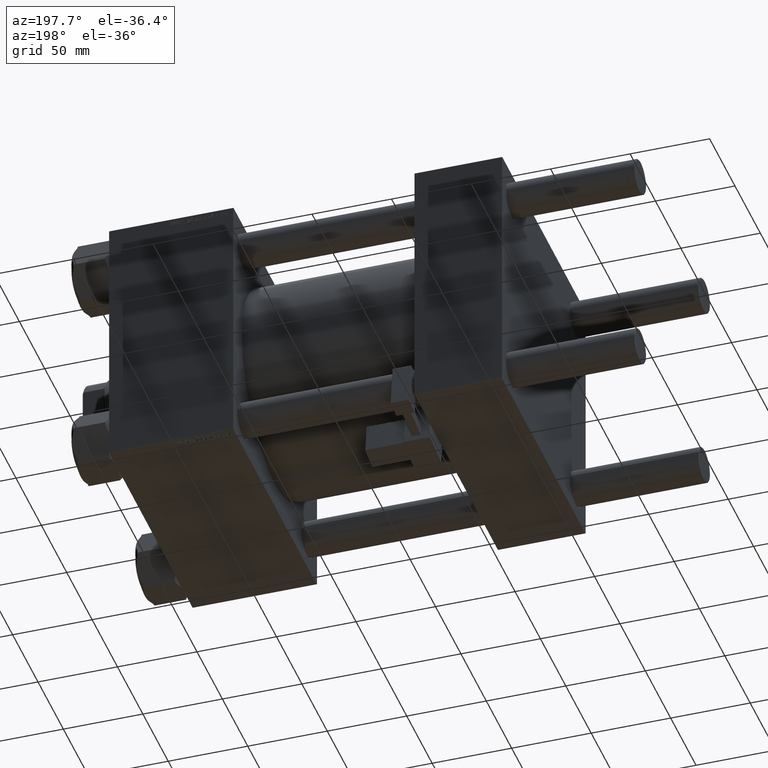
[diagram: clean part render]
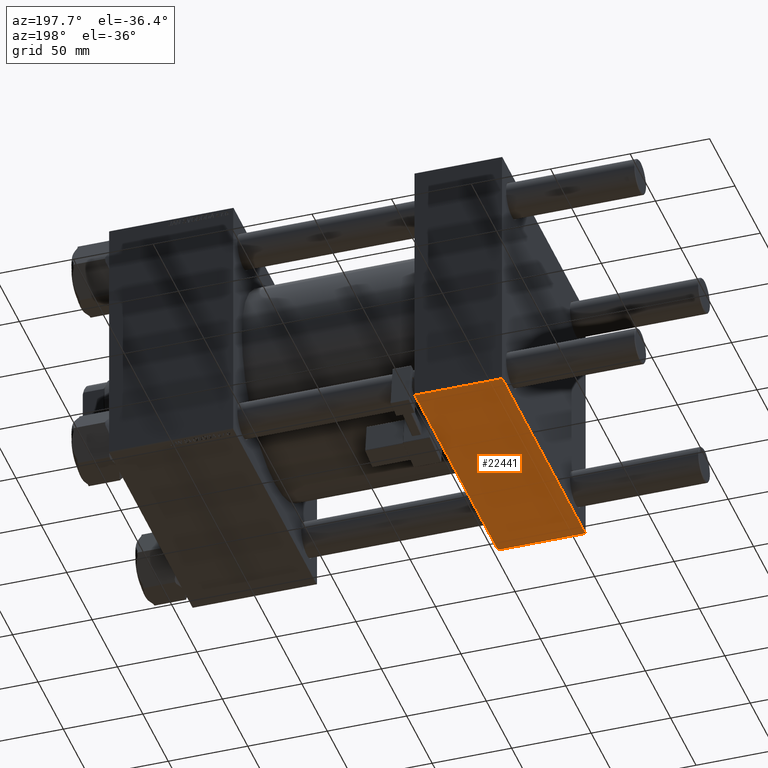
[diagram: same view with one face highlighted and labeled with its STEP entity id]
A machine part, auxiliary view. The second image highlights one B-rep face of the part: STEP entity #22441.
In plain terms, the highlighted planar face has unit normal (0, 0, -1).
Its self-contained STEP definition (entity closure, byte-faithful):
#856 = ORIENTED_EDGE ( 'NONE', *, *, #17948, .T. ) ;
#3818 = VERTEX_POINT ( 'NONE', #6782 ) ;
#4413 = AXIS2_PLACEMENT_3D ( 'NONE', #48157, #40448, #12480 ) ;
#5055 = VERTEX_POINT ( 'NONE', #27131 ) ;
#5195 = EDGE_CURVE ( 'NONE', #5055, #3818, #18218, .T. ) ;
#6782 = CARTESIAN_POINT ( 'NONE',  ( 0.000000000000000000, -82.00000000000000000, -82.50000000000000000 ) ) ;
#8258 = CARTESIAN_POINT ( 'NONE',  ( 0.000000000000000000, 82.00000000000005684, -82.49999999999997158 ) ) ;
#9076 = ORIENTED_EDGE ( 'NONE', *, *, #35486, .T. ) ;
#9496 = DIRECTION ( 'NONE',  ( 0.000000000000000000, -1.000000000000000000, -1.682156097916903588E-16 ) ) ;
#9705 = CARTESIAN_POINT ( 'NONE',  ( 0.000000000000000000, -82.00000000000000000, -82.50000000000000000 ) ) ;
#12480 = DIRECTION ( 'NONE',  ( 0.000000000000000000, 1.000000000000000000, 1.682156097916903588E-16 ) ) ;
#16237 = PLANE ( 'NONE',  #4413 ) ;
#17793 = EDGE_LOOP ( 'NONE', ( #30889, #856, #9076, #39405 ) ) ;
#17948 = EDGE_CURVE ( 'NONE', #41956, #26096, #38075, .T. ) ;
#18218 = LINE ( 'NONE', #9705, #23469 ) ;
#18616 = DIRECTION ( 'NONE',  ( 1.000000000000000000, 0.000000000000000000, 0.000000000000000000 ) ) ;
#22441 = ADVANCED_FACE ( 'NONE', ( #44435 ), #16237, .T. ) ;
#23469 = VECTOR ( 'NONE', #30450, 1000.000000000000000 ) ;
#25227 = VECTOR ( 'NONE', #9496, 1000.000000000000000 ) ;
#26096 = VERTEX_POINT ( 'NONE', #41731 ) ;
#27131 = CARTESIAN_POINT ( 'NONE',  ( 55.00000000000000000, -82.00000000000000000, -82.50000000000000000 ) ) ;
#30450 = DIRECTION ( 'NONE',  ( -1.000000000000000000, 0.000000000000000000, 0.000000000000000000 ) ) ;
#30889 = ORIENTED_EDGE ( 'NONE', *, *, #42771, .F. ) ;
#31113 = CARTESIAN_POINT ( 'NONE',  ( 55.00000000000000000, 82.00000000000005684, -82.49999999999997158 ) ) ;
#33165 = VECTOR ( 'NONE', #18616, 1000.000000000000000 ) ;
#34387 = LINE ( 'NONE', #35172, #43305 ) ;
#35172 = CARTESIAN_POINT ( 'NONE',  ( 0.000000000000000000, 82.50000000000002842, -82.49999999999997158 ) ) ;
#35486 = EDGE_CURVE ( 'NONE', #26096, #5055, #45443, .T. ) ;
#37470 = CARTESIAN_POINT ( 'NONE',  ( 55.00000000000000000, 82.50000000000002842, -82.49999999999997158 ) ) ;
#38075 = LINE ( 'NONE', #31113, #33165 ) ;
#39405 = ORIENTED_EDGE ( 'NONE', *, *, #5195, .T. ) ;
#40448 = DIRECTION ( 'NONE',  ( 0.000000000000000000, 1.682156097916903588E-16, -1.000000000000000000 ) ) ;
#41731 = CARTESIAN_POINT ( 'NONE',  ( 55.00000000000000000, 82.00000000000005684, -82.49999999999997158 ) ) ;
#41956 = VERTEX_POINT ( 'NONE', #8258 ) ;
#42771 = EDGE_CURVE ( 'NONE', #41956, #3818, #34387, .T. ) ;
#43305 = VECTOR ( 'NONE', #51384, 1000.000000000000000 ) ;
#44435 = FACE_OUTER_BOUND ( 'NONE', #17793, .T. ) ;
#45443 = LINE ( 'NONE', #37470, #25227 ) ;
#48157 = CARTESIAN_POINT ( 'NONE',  ( 55.00000000000000000, 82.50000000000002842, -82.49999999999997158 ) ) ;
#51384 = DIRECTION ( 'NONE',  ( 0.000000000000000000, -1.000000000000000000, -1.682156097916903588E-16 ) ) ;